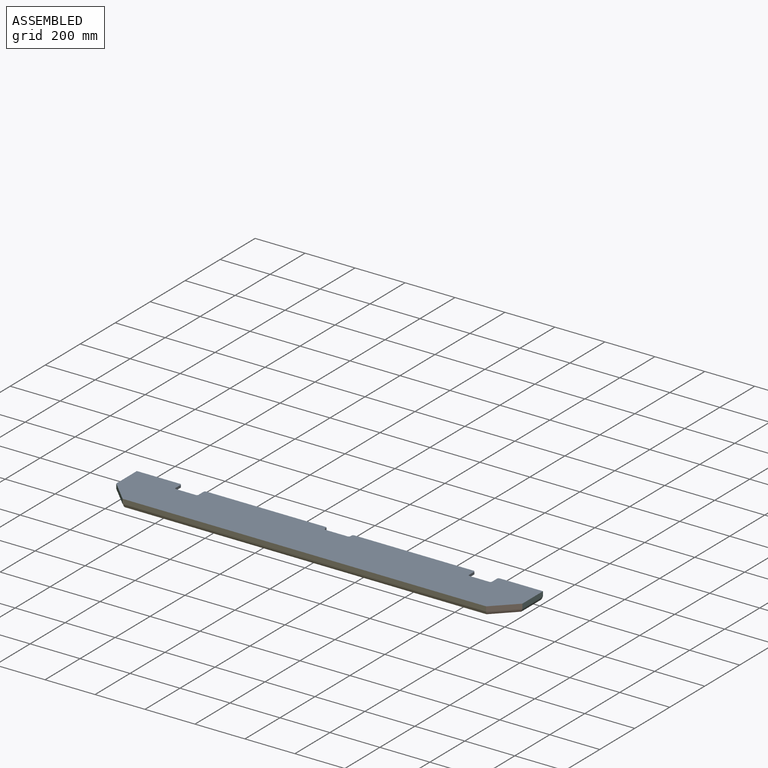
[diagram: assembled view]
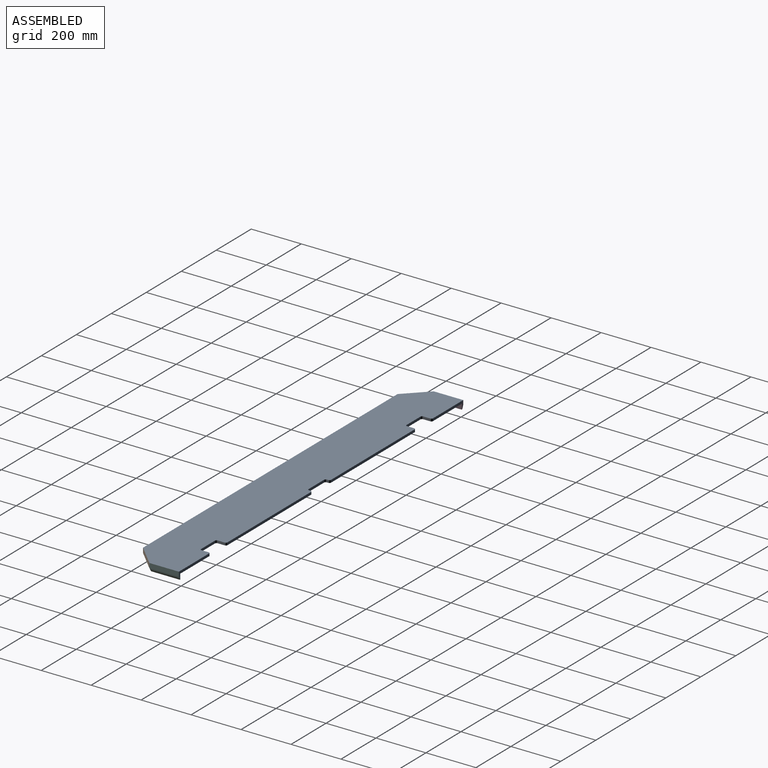
[diagram: assembled view, second angle]
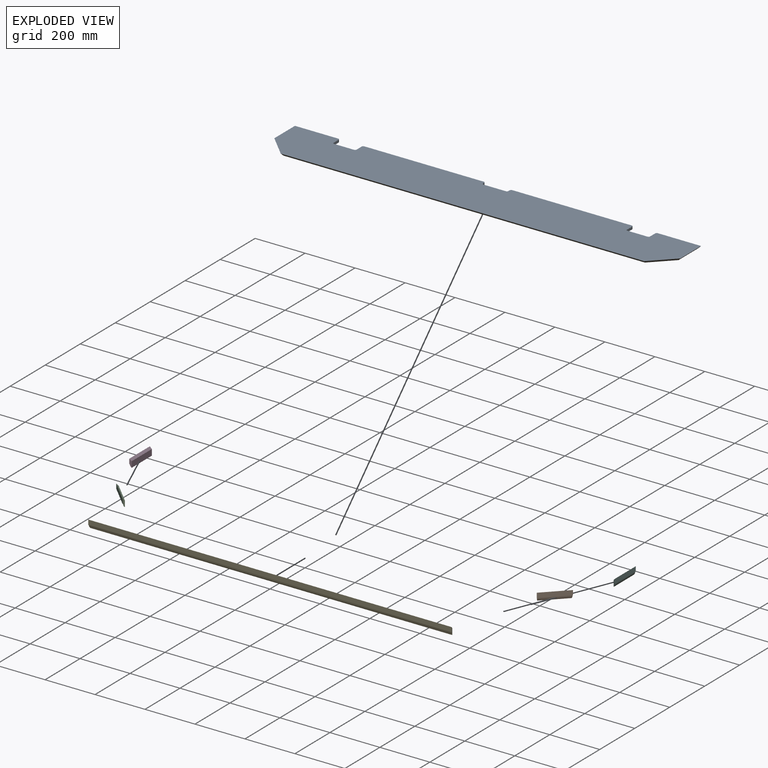
[diagram: exploded view]
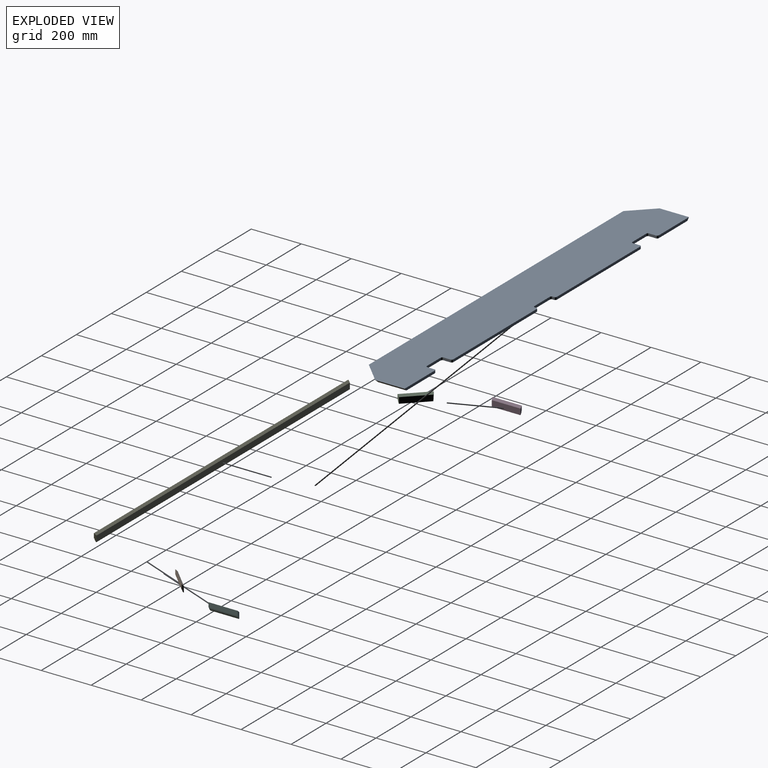
[diagram: exploded view, second angle]
ASSEMBLY  parts=6 mates=5
PART A: 32 faces, bbox 1625.6x203.2x10.2 mm
  f0: plane 173.04x10.16mm, normal (0,1,0), area 1706.4mm2, adj f3,f4,f26,f27
  f1: plane 477.84x10.16mm, normal (0,1,0), area 4854.8mm2, adj f3,f4,f20,f23
  f2: plane 477.84x10.16mm, normal (0,1,0), area 4854.8mm2, adj f3,f4,f18,f19
  f3: plane 1605.28x193.04mm, normal (0,0,-1), area 294048.8mm2, adj f0,f1,f2,f5,f6,f7,f8,f9
  f4: plane 1625.6x203.2mm, normal (0,0,1), area 313507.4mm2, adj f0,f1,f2,f5,f6,f7,f8,f9
  f5: plane 173.04x10.16mm, normal (0,1,0), area 1706.4mm2, adj f3,f4,f15,f28
  f6: plane 28.58x10.16mm, normal (1,0,0), area 290.3mm2, adj f3,f4,f17,f18
  f7: plane 28.58x10.16mm, normal (-1,0,0), area 290.3mm2, adj f3,f4,f15,f16
  f8: plane 79.38x10.16mm, normal (0,1,0), area 806.4mm2, adj f3,f4,f16,f17
  f9: plane 10.16x6.35mm, normal (-1,0,0), area 64.5mm2, adj f3,f4,f19,f22
  f10: plane 10.16x6.35mm, normal (1,0,0), area 64.5mm2, adj f3,f4,f20,f21
  f11: plane 88.9x10.16mm, normal (0,1,0), area 903.2mm2, adj f3,f4,f21,f22
  f12: plane 28.58x10.16mm, normal (1,0,0), area 290.3mm2, adj f3,f4,f25,f26
  f13: plane 28.58x10.16mm, normal (-1,0,0), area 290.3mm2, adj f3,f4,f23,f24
  f14: plane 79.38x10.16mm, normal (0,1,0), area 806.4mm2, adj f3,f4,f24,f25
  f15: cylinder r=6.35mm len=10.16mm, axis (0,0,-1), area 101.3mm2, adj f3,f4,f5,f7
  f16: cylinder r=6.35mm len=10.16mm, axis (0,0,-1), area 101.3mm2, adj f3,f4,f7,f8
  f17: cylinder r=6.35mm len=10.16mm, axis (0,0,1), area 101.3mm2, adj f3,f4,f6,f8
  f18: cylinder r=6.35mm len=10.16mm, axis (0,0,1), area 101.3mm2, adj f2,f3,f4,f6
  f19: cylinder r=6.35mm len=10.16mm, axis (0,0,-1), area 101.3mm2, adj f2,f3,f4,f9
  f20: cylinder r=6.35mm len=10.16mm, axis (0,0,1), area 101.3mm2, adj f1,f3,f4,f10
  f21: cylinder r=6.35mm len=10.16mm, axis (0,0,-1), area 101.3mm2, adj f3,f4,f10,f11
  f22: cylinder r=6.35mm len=10.16mm, axis (0,0,1), area 101.3mm2, adj f3,f4,f9,f11
  f23: cylinder r=6.35mm len=10.16mm, axis (0,0,-1), area 101.3mm2, adj f1,f3,f4,f13
  f24: cylinder r=6.35mm len=10.16mm, axis (0,0,1), area 101.3mm2, adj f3,f4,f13,f14
  f25: cylinder r=6.35mm len=10.16mm, axis (0,0,-1), area 101.3mm2, adj f3,f4,f12,f14
  f26: cylinder r=6.35mm len=10.16mm, axis (0,0,1), area 101.3mm2, adj f0,f3,f4,f12
  f27: plane 117.89x10.16mm, normal (-0.71,0,-0.71), area 1663.6mm2, adj f0,f3,f4,f29
  f28: plane 117.89x10.16mm, normal (0.71,0,-0.71), area 1663.6mm2, adj f3,f4,f5,f30
  f29: plane 89.52x89.52mm, normal (-0.5,-0.5,-0.71), area 1673.1mm2, adj f3,f4,f27,f31
  f30: plane 89.52x89.52mm, normal (0.5,-0.5,-0.71), area 1673.1mm2, adj f3,f4,f28,f31
  f31: plane 1454.98x10.16mm, normal (0,-0.71,-0.71), area 20845.2mm2, adj f3,f4,f29,f30
PART B: 8 faces, bbox 120.7x7.9x31.8 mm
  f0: plane 120.65x7.94mm, normal (0,0.71,-0.71), area 1317.4mm2, adj f3,f5,f6,f7
  f1: extruded ~119.41x12.7mm, area 1627.4mm2, adj f2,f4,f6,f7
  f2: plane 120.65x1.5mm, normal (0,0,1), area 180mm2, adj f1,f3,f6,f7
  f3: plane 120.65x19.05mm, normal (0,-1,0), area 2298.4mm2, adj f0,f2,f6,f7
  f4: plane 115.32x1.5mm, normal (0,0,1), area 172mm2, adj f1,f5,f6,f7
  f5: plane 114.07x23.81mm, normal (0,1,0), area 2716.4mm2, adj f0,f4,f6,f7
  f6: plane 31.75x7.94mm, normal (0.92,0.38,0), area 191.6mm2, adj f0,f1,f2,f3,f4,f5
  f7: plane 31.75x7.94mm, normal (-0.92,0.38,0), area 191.6mm2, adj f0,f1,f2,f3,f4,f5
PART C: 8 faces, bbox 120.7x7.9x31.8 mm
  f0: plane 114.07x23.81mm, normal (0,1,0), area 2716.4mm2, adj f1,f5,f6,f7
  f1: plane 115.32x1.5mm, normal (0,0,1), area 172mm2, adj f0,f4,f6,f7
  f2: plane 120.65x19.05mm, normal (0,-1,0), area 2298.4mm2, adj f3,f5,f6,f7
  f3: plane 120.65x1.5mm, normal (0,0,1), area 180mm2, adj f2,f4,f6,f7
  f4: extruded ~119.41x12.7mm, area 1627.4mm2, adj f1,f3,f6,f7
  f5: plane 120.65x7.94mm, normal (0,0.71,-0.71), area 1317.4mm2, adj f0,f2,f6,f7
  f6: plane 31.75x7.94mm, normal (0.92,0.38,0), area 191.6mm2, adj f0,f1,f2,f3,f4,f5
  f7: plane 31.75x7.94mm, normal (-0.92,0.38,0), area 191.6mm2, adj f0,f1,f2,f3,f4,f5
PART D: 8 faces, bbox 117.9x7.9x31.8 mm
  f0: extruded ~117.27x12.7mm, area 1609.2mm2, adj f1,f4,f6,f7
  f1: plane 117.89x1.5mm, normal (0,0,1), area 176.4mm2, adj f0,f3,f6,f7
  f2: plane 117.89x7.94mm, normal (0,0.71,-0.71), area 1304.9mm2, adj f3,f5,f6,f7
  f3: plane 117.89x19.05mm, normal (0,-1,0), area 2245.8mm2, adj f1,f2,f6,f7
  f4: plane 115.22x1.5mm, normal (0,0,1), area 172.4mm2, adj f0,f5,f6,f7
  f5: plane 114.6x23.81mm, normal (0,1,0), area 2728.9mm2, adj f2,f4,f6,f7
  f6: plane 31.75x7.94mm, normal (-0.92,0.38,0), area 191.6mm2, adj f0,f1,f2,f3,f4,f5
  f7: plane 31.75x7.94mm, normal (1,0,0), area 177mm2, adj f0,f1,f2,f3,f4,f5
PART E: 8 faces, bbox 1455x7.9x31.8 mm
  f0: extruded ~1453.73x12.7mm, area 20068.8mm2, adj f1,f4,f6,f7
  f1: plane 1454.98x1.5mm, normal (0,0,1), area 2181.5mm2, adj f0,f3,f6,f7
  f2: plane 1454.98x7.94mm, normal (0,0.71,-0.71), area 16295.7mm2, adj f3,f5,f6,f7
  f3: plane 1454.98x19.05mm, normal (0,-1,0), area 27717.3mm2, adj f1,f2,f6,f7
  f4: plane 1449.64x1.5mm, normal (0,0,1), area 2173.5mm2, adj f0,f5,f6,f7
  f5: plane 1448.4x23.81mm, normal (0,1,0), area 34490mm2, adj f2,f4,f6,f7
  f6: plane 31.75x7.94mm, normal (-0.92,0.38,0), area 191.6mm2, adj f0,f1,f2,f3,f4,f5
  f7: plane 31.75x7.94mm, normal (0.92,0.38,0), area 191.6mm2, adj f0,f1,f2,f3,f4,f5
PART F: 8 faces, bbox 117.9x7.9x31.8 mm
  f0: extruded ~117.27x12.7mm, area 1609.2mm2, adj f1,f4,f6,f7
  f1: plane 117.89x1.5mm, normal (0,0,1), area 176.4mm2, adj f0,f3,f6,f7
  f2: plane 117.89x7.94mm, normal (0,0.71,-0.71), area 1304.9mm2, adj f3,f5,f6,f7
  f3: plane 117.89x19.05mm, normal (0,-1,0), area 2245.8mm2, adj f1,f2,f6,f7
  f4: plane 115.22x1.5mm, normal (0,0,1), area 172.4mm2, adj f0,f5,f6,f7
  f5: plane 114.6x23.81mm, normal (0,1,0), area 2728.9mm2, adj f2,f4,f6,f7
  f6: plane 31.75x7.94mm, normal (-1,0,0), area 177mm2, adj f0,f1,f2,f3,f4,f5
  f7: plane 31.75x7.94mm, normal (0.92,0.38,0), area 191.6mm2, adj f0,f1,f2,f3,f4,f5
PLACE A at identity fixed
PLACE B rot(axis=(0.38,-0.92,0),180deg) t=(63.78,-568.31,-31.75)mm
PLACE C rot(axis=(-0.38,-0.92,0),180deg) t=(-63.78,-568.31,-31.75)mm
PLACE D rot(axis=(-0.71,-0.71,0),180deg) t=(-601.66,-966.03,-31.75)mm
PLACE E rot(axis=(0,-1,0),180deg) t=(0,7.94,-31.75)mm
PLACE F rot(axis=(0.71,-0.71,0),180deg) t=(601.66,-966.03,-31.75)mm
MATE fastened D.f6 <-> C.f6  axis (0.38,-0.92,0) through (-808.6,-116.15,-15.48)mm
MATE fastened F.f7 <-> B.f7  axis (-0.38,-0.92,0) through (808.6,-116.15,-15.48)mm
MATE fastened E.f7 <-> C.f7  axis (-0.92,0.38,0) through (-725.75,-199,-15.48)mm
MATE fastened E.f2 <-> A.f31  axis (0,0.71,0.71) through (0,-203.2,0)mm
MATE fastened E.f6 <-> B.f6  axis (0.92,0.38,0) through (725.75,-199,-15.48)mm
